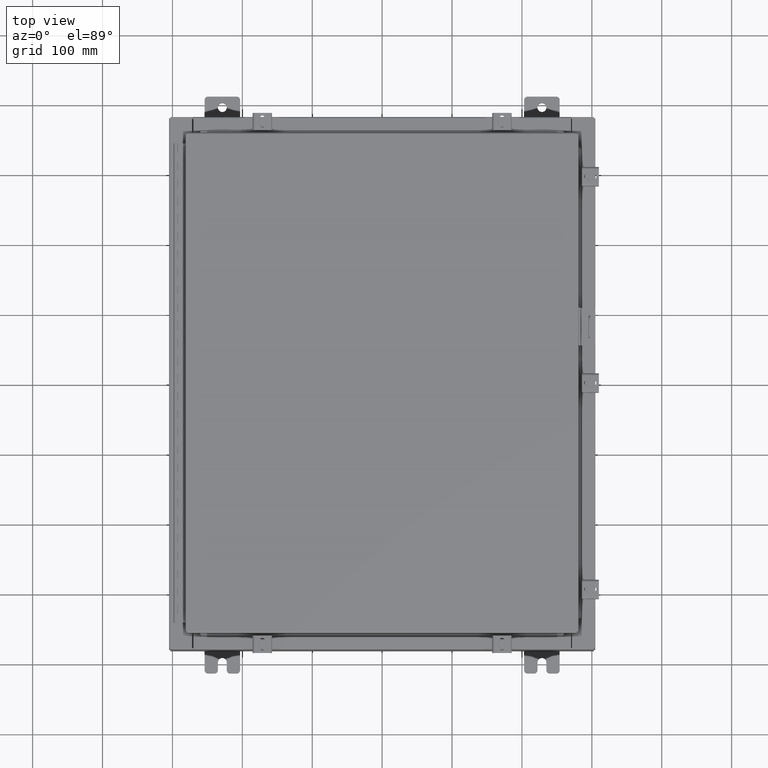
[diagram: clean part render]
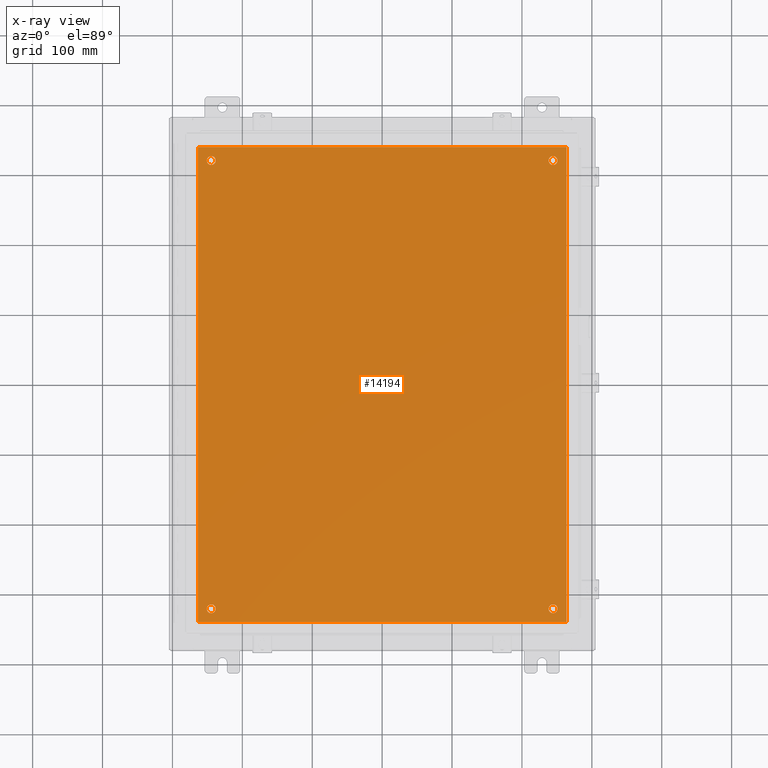
[diagram: x-ray — body ghosted, one internal face saturated and labeled with its STEP entity id]
A machine part, top view, then the same camera in x-ray: the body is ghosted and one INTERNAL B-rep face — a face not visible from any outside direction — is saturated and labeled: STEP entity #14194.
In plain terms, the highlighted planar face has unit normal (0, 0, -1).
Its self-contained STEP definition (entity closure, byte-faithful):
#245 = CIRCLE ( 'NONE', #26663, 0.2499999999999998100 ) ;
#482 = EDGE_CURVE ( 'NONE', #29888, #13471, #3420, .T. ) ;
#509 = ORIENTED_EDGE ( 'NONE', *, *, #30230, .T. ) ;
#1303 = DIRECTION ( 'NONE',  ( 0.0000000000000000000, 1.000000000000000000, 0.0000000000000000000 ) ) ;
#2187 = DIRECTION ( 'NONE',  ( -1.000000000000000000, -0.0000000000000000000, -0.0000000000000000000 ) ) ;
#2394 = DIRECTION ( 'NONE',  ( -0.0000000000000000000, -0.0000000000000000000, 1.000000000000000000 ) ) ;
#2596 = PLANE ( 'NONE',  #19268 ) ;
#3420 = CIRCLE ( 'NONE', #6792, 0.2500000000000008900 ) ;
#4183 = DIRECTION ( 'NONE',  ( -1.000000000000000000, 0.0000000000000000000, 0.0000000000000000000 ) ) ;
#4293 = EDGE_CURVE ( 'NONE', #6883, #19011, #5366, .T. ) ;
#5087 = CARTESIAN_POINT ( 'NONE',  ( -9.375000000000007100, -12.62500000000000000, -0.1039999999999999800 ) ) ;
#5274 = AXIS2_PLACEMENT_3D ( 'NONE', #6895, #6789, #6420 ) ;
#5366 = CIRCLE ( 'NONE', #5274, 0.2500000000000008900 ) ;
#5758 = VECTOR ( 'NONE', #2187, 39.37007874015748100 ) ;
#5955 = CARTESIAN_POINT ( 'NONE',  ( 10.50000000000000400, 13.38299999999999900, -0.1040000000000009100 ) ) ;
#6315 = CARTESIAN_POINT ( 'NONE',  ( 9.375000000000007100, -12.62500000000000000, -0.1039999999999999800 ) ) ;
#6420 = DIRECTION ( 'NONE',  ( -1.000000000000000000, 0.0000000000000000000, 0.0000000000000000000 ) ) ;
#6712 = CIRCLE ( 'NONE', #30876, 0.2499999999999998100 ) ;
#6789 = DIRECTION ( 'NONE',  ( -0.0000000000000000000, -0.0000000000000000000, 1.000000000000000000 ) ) ;
#6792 = AXIS2_PLACEMENT_3D ( 'NONE', #30114, #18487, #27877 ) ;
#6883 = VERTEX_POINT ( 'NONE', #8129 ) ;
#6895 = CARTESIAN_POINT ( 'NONE',  ( -9.625000000000007100, 12.62500000000000000, -0.1039999999999999800 ) ) ;
#6972 = EDGE_LOOP ( 'NONE', ( #27735, #33359 ) ) ;
#7020 = ORIENTED_EDGE ( 'NONE', *, *, #14781, .T. ) ;
#7992 = EDGE_CURVE ( 'NONE', #15332, #27924, #13936, .T. ) ;
#8129 = CARTESIAN_POINT ( 'NONE',  ( -9.875000000000007100, 12.62500000000000000, -0.1039999999999999800 ) ) ;
#9149 = CIRCLE ( 'NONE', #32251, 0.2500000000000008900 ) ;
#9324 = DIRECTION ( 'NONE',  ( -1.000000000000000000, 0.0000000000000000000, 0.0000000000000000000 ) ) ;
#9513 = AXIS2_PLACEMENT_3D ( 'NONE', #28417, #10837, #31367 ) ;
#9611 = CARTESIAN_POINT ( 'NONE',  ( -10.50000000000000200, -13.38299999999999900, -0.1040000000000009100 ) ) ;
#10185 = ORIENTED_EDGE ( 'NONE', *, *, #4293, .T. ) ;
#10442 = DIRECTION ( 'NONE',  ( 1.000000000000000000, -0.0000000000000000000, -0.0000000000000000000 ) ) ;
#10837 = DIRECTION ( 'NONE',  ( -0.0000000000000000000, -0.0000000000000000000, 1.000000000000000000 ) ) ;
#11127 = LINE ( 'NONE', #5955, #5758 ) ;
#11427 = EDGE_LOOP ( 'NONE', ( #7020, #18423 ) ) ;
#11944 = DIRECTION ( 'NONE',  ( -0.0000000000000000000, -0.0000000000000000000, 1.000000000000000000 ) ) ;
#12356 = LINE ( 'NONE', #25447, #36389 ) ;
#12512 = EDGE_LOOP ( 'NONE', ( #509, #23057 ) ) ;
#13068 = CARTESIAN_POINT ( 'NONE',  ( 0.0000000000000000000, 0.0000000000000000000, -0.1039999999999999800 ) ) ;
#13471 = VERTEX_POINT ( 'NONE', #16827 ) ;
#13936 = LINE ( 'NONE', #19594, #18981 ) ;
#14194 = ADVANCED_FACE ( 'NONE', ( #23964, #22022, #22687, #22458, #21208 ), #2596, .T. ) ;
#14635 = VERTEX_POINT ( 'NONE', #23514 ) ;
#14781 = EDGE_CURVE ( 'NONE', #14635, #27167, #25154, .T. ) ;
#14883 = DIRECTION ( 'NONE',  ( -0.0000000000000000000, -0.0000000000000000000, 1.000000000000000000 ) ) ;
#15332 = VERTEX_POINT ( 'NONE', #29766 ) ;
#15521 = EDGE_CURVE ( 'NONE', #19011, #6883, #9149, .T. ) ;
#15734 = CARTESIAN_POINT ( 'NONE',  ( -9.375000000000007100, 12.62500000000000000, -0.1039999999999999800 ) ) ;
#15842 = DIRECTION ( 'NONE',  ( -0.0000000000000000000, -0.0000000000000000000, 1.000000000000000000 ) ) ;
#16297 = VERTEX_POINT ( 'NONE', #20731 ) ;
#16827 = CARTESIAN_POINT ( 'NONE',  ( -9.875000000000007100, -12.62500000000000000, -0.1039999999999999800 ) ) ;
#17581 = AXIS2_PLACEMENT_3D ( 'NONE', #23371, #11944, #20648 ) ;
#18423 = ORIENTED_EDGE ( 'NONE', *, *, #34153, .T. ) ;
#18487 = DIRECTION ( 'NONE',  ( -0.0000000000000000000, -0.0000000000000000000, 1.000000000000000000 ) ) ;
#18981 = VECTOR ( 'NONE', #24075, 39.37007874015748100 ) ;
#19011 = VERTEX_POINT ( 'NONE', #15734 ) ;
#19268 = AXIS2_PLACEMENT_3D ( 'NONE', #13068, #22776, #36437 ) ;
#19473 = CARTESIAN_POINT ( 'NONE',  ( -9.625000000000007100, 12.62500000000000000, -0.1039999999999999800 ) ) ;
#19594 = CARTESIAN_POINT ( 'NONE',  ( -10.38300000000000100, 13.38299999999999700, -0.1040000000000020100 ) ) ;
#19854 = EDGE_CURVE ( 'NONE', #26312, #37235, #245, .T. ) ;
#20026 = CARTESIAN_POINT ( 'NONE',  ( 9.375000000000007100, 12.62500000000000000, -0.1039999999999999800 ) ) ;
#20293 = ORIENTED_EDGE ( 'NONE', *, *, #30665, .F. ) ;
#20648 = DIRECTION ( 'NONE',  ( -1.000000000000000000, 0.0000000000000000000, 0.0000000000000000000 ) ) ;
#20731 = CARTESIAN_POINT ( 'NONE',  ( 10.38300000000000100, -13.38299999999999700, -0.1040000000000009100 ) ) ;
#20944 = ORIENTED_EDGE ( 'NONE', *, *, #21466, .F. ) ;
#21208 = FACE_OUTER_BOUND ( 'NONE', #28374, .T. ) ;
#21419 = DIRECTION ( 'NONE',  ( -0.0000000000000000000, -0.0000000000000000000, 1.000000000000000000 ) ) ;
#21466 = EDGE_CURVE ( 'NONE', #27924, #16297, #23148, .T. ) ;
#21893 = ORIENTED_EDGE ( 'NONE', *, *, #15521, .T. ) ;
#22022 = FACE_BOUND ( 'NONE', #11427, .T. ) ;
#22458 = FACE_BOUND ( 'NONE', #34592, .T. ) ;
#22687 = FACE_BOUND ( 'NONE', #12512, .T. ) ;
#22776 = DIRECTION ( 'NONE',  ( 0.0000000000000000000, 0.0000000000000000000, -1.000000000000000000 ) ) ;
#23057 = ORIENTED_EDGE ( 'NONE', *, *, #19854, .T. ) ;
#23148 = LINE ( 'NONE', #9611, #23884 ) ;
#23371 = CARTESIAN_POINT ( 'NONE',  ( 9.625000000000007100, -12.62500000000000000, -0.1039999999999999800 ) ) ;
#23514 = CARTESIAN_POINT ( 'NONE',  ( 9.875000000000007100, -12.62500000000000000, -0.1039999999999999800 ) ) ;
#23883 = DIRECTION ( 'NONE',  ( -1.000000000000000000, 0.0000000000000000000, 0.0000000000000000000 ) ) ;
#23884 = VECTOR ( 'NONE', #10442, 39.37007874015748100 ) ;
#23964 = FACE_BOUND ( 'NONE', #6972, .T. ) ;
#24075 = DIRECTION ( 'NONE',  ( 0.0000000000000000000, -1.000000000000000000, 0.0000000000000000000 ) ) ;
#25154 = CIRCLE ( 'NONE', #17581, 0.2499999999999998100 ) ;
#25447 = CARTESIAN_POINT ( 'NONE',  ( 10.38300000000000100, -13.38299999999999700, -0.1040000000000009100 ) ) ;
#25954 = VERTEX_POINT ( 'NONE', #26731 ) ;
#26312 = VERTEX_POINT ( 'NONE', #20026 ) ;
#26663 = AXIS2_PLACEMENT_3D ( 'NONE', #32714, #21419, #9324 ) ;
#26731 = CARTESIAN_POINT ( 'NONE',  ( 10.38300000000000100, 13.38299999999999700, -0.1040000000000009100 ) ) ;
#27167 = VERTEX_POINT ( 'NONE', #6315 ) ;
#27265 = CARTESIAN_POINT ( 'NONE',  ( -10.38300000000000100, -13.38299999999999900, -0.1040000000000009100 ) ) ;
#27735 = ORIENTED_EDGE ( 'NONE', *, *, #482, .T. ) ;
#27828 = CARTESIAN_POINT ( 'NONE',  ( 9.875000000000007100, 12.62500000000000000, -0.1039999999999999800 ) ) ;
#27877 = DIRECTION ( 'NONE',  ( -1.000000000000000000, 0.0000000000000000000, 0.0000000000000000000 ) ) ;
#27924 = VERTEX_POINT ( 'NONE', #27265 ) ;
#28374 = EDGE_LOOP ( 'NONE', ( #20944, #32028, #35102, #20293 ) ) ;
#28417 = CARTESIAN_POINT ( 'NONE',  ( 9.625000000000007100, -12.62500000000000000, -0.1039999999999999800 ) ) ;
#29766 = CARTESIAN_POINT ( 'NONE',  ( -10.38300000000000100, 13.38299999999999700, -0.1040000000000020100 ) ) ;
#29888 = VERTEX_POINT ( 'NONE', #5087 ) ;
#30114 = CARTESIAN_POINT ( 'NONE',  ( -9.625000000000007100, -12.62500000000000000, -0.1039999999999999800 ) ) ;
#30230 = EDGE_CURVE ( 'NONE', #37235, #26312, #6712, .T. ) ;
#30413 = CIRCLE ( 'NONE', #9513, 0.2499999999999998100 ) ;
#30665 = EDGE_CURVE ( 'NONE', #16297, #25954, #12356, .T. ) ;
#30876 = AXIS2_PLACEMENT_3D ( 'NONE', #36463, #14883, #23883 ) ;
#31367 = DIRECTION ( 'NONE',  ( -1.000000000000000000, 0.0000000000000000000, 0.0000000000000000000 ) ) ;
#31679 = EDGE_CURVE ( 'NONE', #25954, #15332, #11127, .T. ) ;
#32028 = ORIENTED_EDGE ( 'NONE', *, *, #7992, .F. ) ;
#32251 = AXIS2_PLACEMENT_3D ( 'NONE', #19473, #2394, #4183 ) ;
#32414 = EDGE_CURVE ( 'NONE', #13471, #29888, #34689, .T. ) ;
#32714 = CARTESIAN_POINT ( 'NONE',  ( 9.625000000000007100, 12.62500000000000000, -0.1039999999999999800 ) ) ;
#33359 = ORIENTED_EDGE ( 'NONE', *, *, #32414, .T. ) ;
#33440 = CARTESIAN_POINT ( 'NONE',  ( -9.625000000000007100, -12.62500000000000000, -0.1039999999999999800 ) ) ;
#34153 = EDGE_CURVE ( 'NONE', #27167, #14635, #30413, .T. ) ;
#34592 = EDGE_LOOP ( 'NONE', ( #21893, #10185 ) ) ;
#34689 = CIRCLE ( 'NONE', #36308, 0.2500000000000008900 ) ;
#35102 = ORIENTED_EDGE ( 'NONE', *, *, #31679, .F. ) ;
#36308 = AXIS2_PLACEMENT_3D ( 'NONE', #33440, #15842, #36376 ) ;
#36376 = DIRECTION ( 'NONE',  ( -1.000000000000000000, 0.0000000000000000000, 0.0000000000000000000 ) ) ;
#36389 = VECTOR ( 'NONE', #1303, 39.37007874015748100 ) ;
#36437 = DIRECTION ( 'NONE',  ( -1.000000000000000000, 0.0000000000000000000, -0.0000000000000000000 ) ) ;
#36463 = CARTESIAN_POINT ( 'NONE',  ( 9.625000000000007100, 12.62500000000000000, -0.1039999999999999800 ) ) ;
#37235 = VERTEX_POINT ( 'NONE', #27828 ) ;